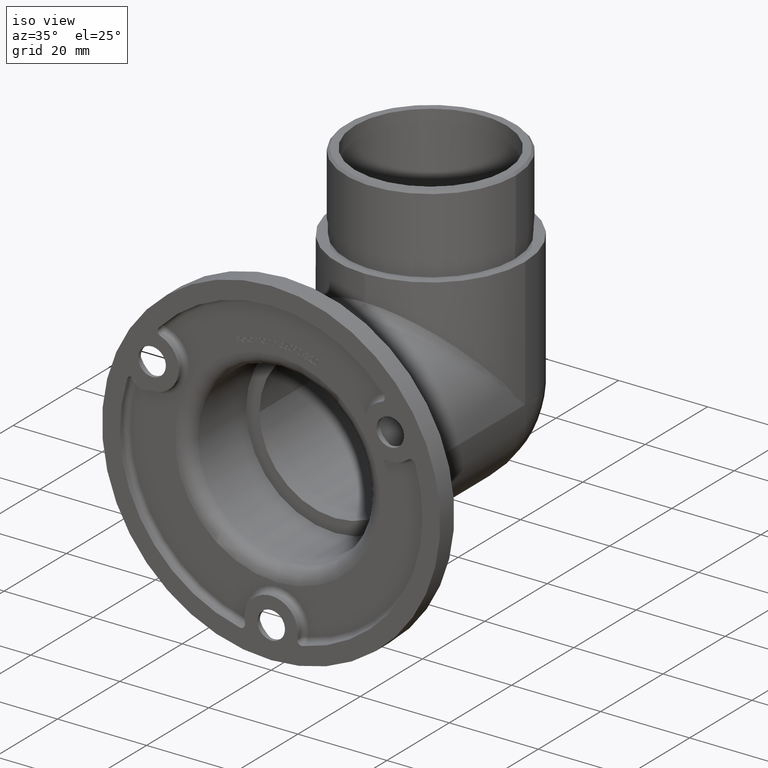
[diagram: clean part render]
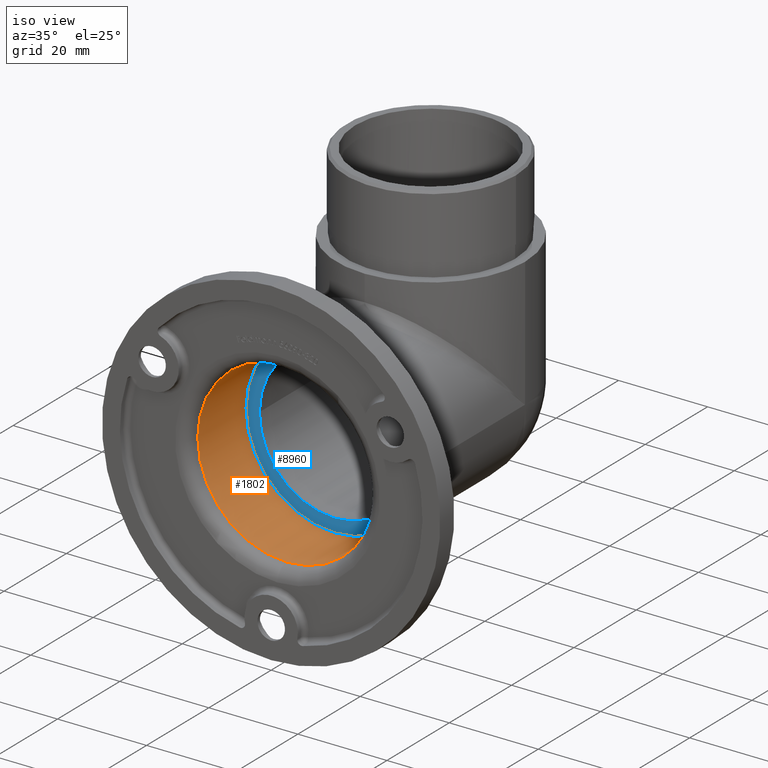
[diagram: same view with the hole feature highlighted: cylindrical wall and planar end face, labeled with their STEP entity ids]
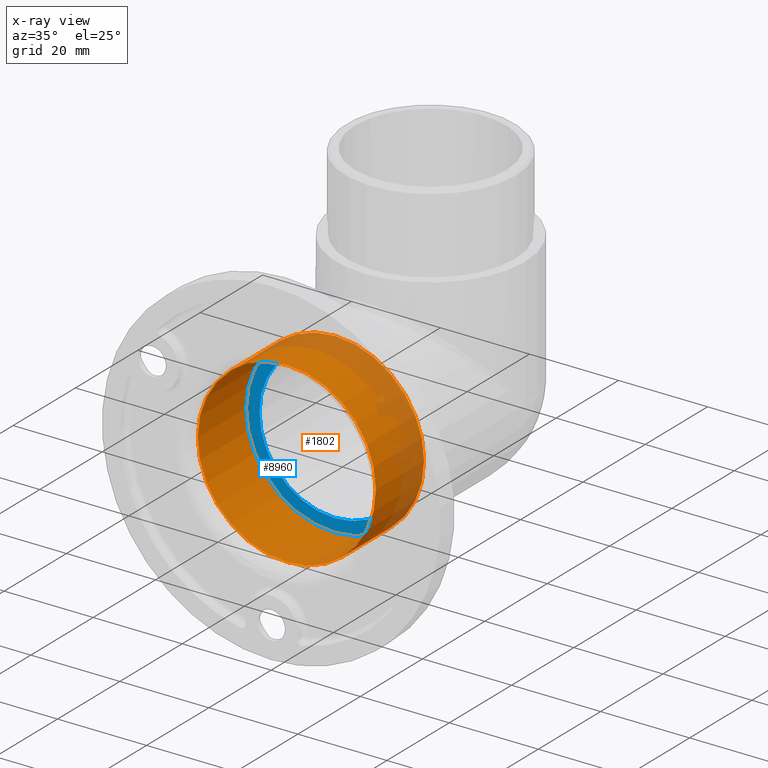
[diagram: x-ray of the same camera — body ghosted, the hole faces saturated]
A machine part, iso view. The highlighted faces form one hole feature of diameter 40 mm: the cylindrical wall (entity #1802, orange) and its adjacent planar end face (entity #8960, blue) — they share a circular edge in the B-rep.
The next image is the same camera in x-ray (body ghosted, the hole faces saturated) — the bore reads through the body.
Wall:
#189 = ORIENTED_EDGE ( 'NONE', *, *, #11407, .F. ) ;
#1802 = ADVANCED_FACE ( 'NONE', ( #13824, #4198 ), #11311, .F. ) ;
#2398 = AXIS2_PLACEMENT_3D ( 'NONE', #2793, #15096, #7558 ) ;
#2410 = AXIS2_PLACEMENT_3D ( 'NONE', #8507, #12387, #15186 ) ;
#2793 = CARTESIAN_POINT ( 'NONE',  ( 0.0000000000000000000, 20.50000000000000000, 0.0000000000000000000 ) ) ;
#4198 = FACE_OUTER_BOUND ( 'NONE', #9482, .T. ) ;
#4662 = CIRCLE ( 'NONE', #7246, 20.00000000000000000 ) ;
#5627 = EDGE_LOOP ( 'NONE', ( #14789 ) ) ;
#7246 = AXIS2_PLACEMENT_3D ( 'NONE', #9752, #13550, #13640 ) ;
#7558 = DIRECTION ( 'NONE',  ( 0.0000000000000000000, 0.0000000000000000000, -1.000000000000000000 ) ) ;
#8507 = CARTESIAN_POINT ( 'NONE',  ( 0.0000000000000000000, 20.50000000000000000, 0.0000000000000000000 ) ) ;
#9420 = CARTESIAN_POINT ( 'NONE',  ( 0.0000000000000000000, 5.000000000000000900, -20.00000000000000000 ) ) ;
#9482 = EDGE_LOOP ( 'NONE', ( #189 ) ) ;
#9752 = CARTESIAN_POINT ( 'NONE',  ( 0.0000000000000000000, 5.000000000000000900, 0.0000000000000000000 ) ) ;
#11311 = CYLINDRICAL_SURFACE ( 'NONE', #2398, 20.00000000000000000 ) ;
#11407 = EDGE_CURVE ( 'NONE', #12505, #12505, #12785, .T. ) ;
#12387 = DIRECTION ( 'NONE',  ( 0.0000000000000000000, -1.000000000000000000, 0.0000000000000000000 ) ) ;
#12505 = VERTEX_POINT ( 'NONE', #13099 ) ;
#12573 = EDGE_CURVE ( 'NONE', #12899, #12899, #4662, .T. ) ;
#12785 = CIRCLE ( 'NONE', #2410, 20.00000000000000000 ) ;
#12899 = VERTEX_POINT ( 'NONE', #9420 ) ;
#13099 = CARTESIAN_POINT ( 'NONE',  ( 0.0000000000000000000, 20.50000000000000000, -20.00000000000000000 ) ) ;
#13550 = DIRECTION ( 'NONE',  ( 0.0000000000000000000, -1.000000000000000000, 0.0000000000000000000 ) ) ;
#13640 = DIRECTION ( 'NONE',  ( 0.0000000000000000000, 0.0000000000000000000, -1.000000000000000000 ) ) ;
#13824 = FACE_OUTER_BOUND ( 'NONE', #5627, .T. ) ;
#14789 = ORIENTED_EDGE ( 'NONE', *, *, #12573, .T. ) ;
#15096 = DIRECTION ( 'NONE',  ( -0.0000000000000000000, -1.000000000000000000, -0.0000000000000000000 ) ) ;
#15186 = DIRECTION ( 'NONE',  ( 0.0000000000000000000, 0.0000000000000000000, -1.000000000000000000 ) ) ;
End face:
#515 = CIRCLE ( 'NONE', #7330, 17.00000000000000000 ) ;
#1331 = ORIENTED_EDGE ( 'NONE', *, *, #11407, .T. ) ;
#1398 = ORIENTED_EDGE ( 'NONE', *, *, #8026, .T. ) ;
#1412 = EDGE_CURVE ( 'NONE', #13865, #9803, #9580, .T. ) ;
#2378 = EDGE_CURVE ( 'NONE', #4811, #13865, #515, .T. ) ;
#2410 = AXIS2_PLACEMENT_3D ( 'NONE', #8507, #12387, #15186 ) ;
#3088 = EDGE_LOOP ( 'NONE', ( #1398, #6328, #14975, #14880 ) ) ;
#3189 = DIRECTION ( 'NONE',  ( 0.0000000000000000000, 0.0000000000000000000, -1.000000000000000000 ) ) ;
#3218 = AXIS2_PLACEMENT_3D ( 'NONE', #6048, #10859, #6000 ) ;
#3226 = EDGE_LOOP ( 'NONE', ( #1331 ) ) ;
#4133 = VERTEX_POINT ( 'NONE', #13325 ) ;
#4155 = CARTESIAN_POINT ( 'NONE',  ( 7.286069986480922000E-015, 20.50000000000000400, 16.99999999999999600 ) ) ;
#4440 = CIRCLE ( 'NONE', #10970, 17.00000000000000000 ) ;
#4811 = VERTEX_POINT ( 'NONE', #14955 ) ;
#6000 = DIRECTION ( 'NONE',  ( 0.0000000000000000000, 0.0000000000000000000, -1.000000000000000000 ) ) ;
#6048 = CARTESIAN_POINT ( 'NONE',  ( 3.469446951953614200E-015, 20.50000000000000400, -3.469446951953614200E-015 ) ) ;
#6130 = FACE_BOUND ( 'NONE', #3088, .T. ) ;
#6328 = ORIENTED_EDGE ( 'NONE', *, *, #2378, .T. ) ;
#6863 = CARTESIAN_POINT ( 'NONE',  ( -16.99999999999999600, 20.50000000000000400, -3.465976141278634700E-016 ) ) ;
#7330 = AXIS2_PLACEMENT_3D ( 'NONE', #11647, #9147, #14183 ) ;
#7896 = DIRECTION ( 'NONE',  ( 8.881784197001252300E-016, 0.0000000000000000000, -1.000000000000000000 ) ) ;
#8004 = CARTESIAN_POINT ( 'NONE',  ( 3.469446951953614200E-015, 20.50000000000000400, -3.469446951953614200E-015 ) ) ;
#8026 = EDGE_CURVE ( 'NONE', #4133, #4811, #4440, .T. ) ;
#8166 = DIRECTION ( 'NONE',  ( 0.0000000000000000000, -0.0000000000000000000, -1.000000000000000000 ) ) ;
#8507 = CARTESIAN_POINT ( 'NONE',  ( 0.0000000000000000000, 20.50000000000000000, 0.0000000000000000000 ) ) ;
#8960 = ADVANCED_FACE ( 'NONE', ( #12689, #6130 ), #10667, .T. ) ;
#9147 = DIRECTION ( 'NONE',  ( -0.0000000000000000000, 1.000000000000000000, -0.0000000000000000000 ) ) ;
#9313 = DIRECTION ( 'NONE',  ( -0.0000000000000000000, 1.000000000000000000, -0.0000000000000000000 ) ) ;
#9580 = CIRCLE ( 'NONE', #3218, 17.00000000000000000 ) ;
#9803 = VERTEX_POINT ( 'NONE', #4155 ) ;
#10667 = PLANE ( 'NONE',  #12247 ) ;
#10859 = DIRECTION ( 'NONE',  ( -0.0000000000000000000, 1.000000000000000000, -0.0000000000000000000 ) ) ;
#10970 = AXIS2_PLACEMENT_3D ( 'NONE', #8004, #11583, #7896 ) ;
#11407 = EDGE_CURVE ( 'NONE', #12505, #12505, #12785, .T. ) ;
#11583 = DIRECTION ( 'NONE',  ( -0.0000000000000000000, 1.000000000000000000, -0.0000000000000000000 ) ) ;
#11647 = CARTESIAN_POINT ( 'NONE',  ( 3.469446951953615000E-015, 20.50000000000000400, -3.469446951953614200E-015 ) ) ;
#12247 = AXIS2_PLACEMENT_3D ( 'NONE', #15647, #14353, #8166 ) ;
#12387 = DIRECTION ( 'NONE',  ( 0.0000000000000000000, -1.000000000000000000, 0.0000000000000000000 ) ) ;
#12505 = VERTEX_POINT ( 'NONE', #13099 ) ;
#12689 = FACE_OUTER_BOUND ( 'NONE', #3226, .T. ) ;
#12785 = CIRCLE ( 'NONE', #2410, 20.00000000000000000 ) ;
#13099 = CARTESIAN_POINT ( 'NONE',  ( 0.0000000000000000000, 20.50000000000000000, -20.00000000000000000 ) ) ;
#13107 = CIRCLE ( 'NONE', #15650, 17.00000000000000000 ) ;
#13325 = CARTESIAN_POINT ( 'NONE',  ( 17.00000000000000700, 20.50000000000000400, -2.102542699728473200E-015 ) ) ;
#13355 = EDGE_CURVE ( 'NONE', #9803, #4133, #13107, .T. ) ;
#13865 = VERTEX_POINT ( 'NONE', #6863 ) ;
#14183 = DIRECTION ( 'NONE',  ( 0.0000000000000000000, 0.0000000000000000000, -1.000000000000000000 ) ) ;
#14353 = DIRECTION ( 'NONE',  ( 0.0000000000000000000, -1.000000000000000000, 0.0000000000000000000 ) ) ;
#14448 = CARTESIAN_POINT ( 'NONE',  ( 5.204170427930421300E-015, 20.50000000000000400, -3.469446951953614200E-015 ) ) ;
#14880 = ORIENTED_EDGE ( 'NONE', *, *, #13355, .T. ) ;
#14955 = CARTESIAN_POINT ( 'NONE',  ( 3.469446951953615000E-015, 20.50000000000000400, -17.00000000000000400 ) ) ;
#14975 = ORIENTED_EDGE ( 'NONE', *, *, #1412, .T. ) ;
#15186 = DIRECTION ( 'NONE',  ( 0.0000000000000000000, 0.0000000000000000000, -1.000000000000000000 ) ) ;
#15647 = CARTESIAN_POINT ( 'NONE',  ( 0.0000000000000000000, 20.50000000000000000, 0.0000000000000000000 ) ) ;
#15650 = AXIS2_PLACEMENT_3D ( 'NONE', #14448, #9313, #3189 ) ;